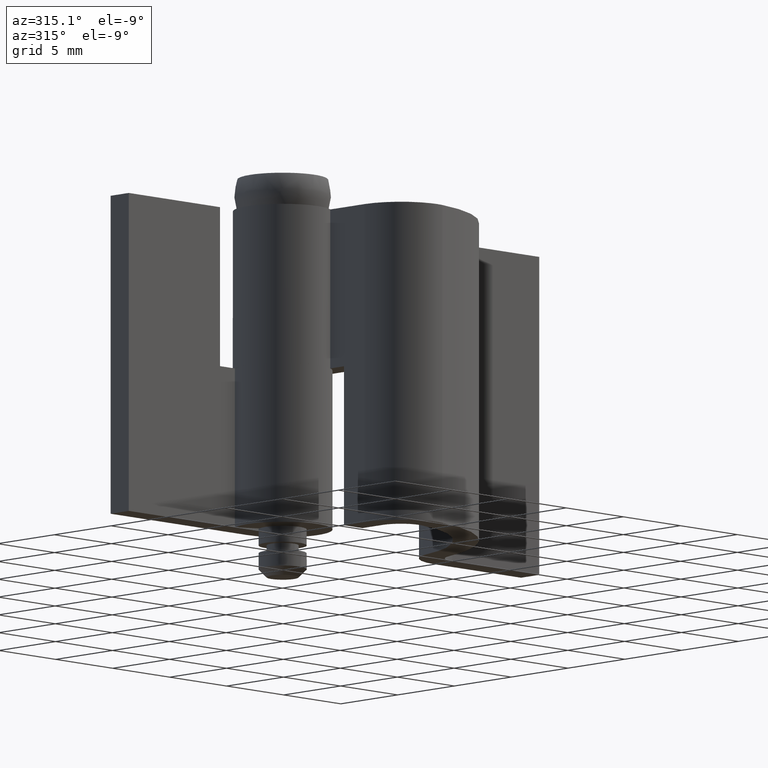
[diagram: clean part render]
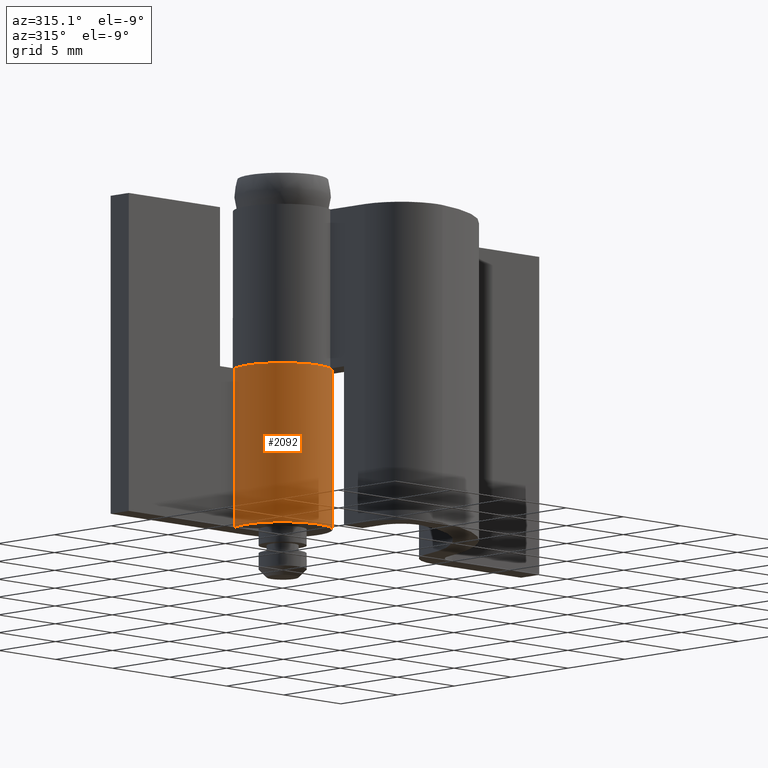
[diagram: same view with one face highlighted and labeled with its STEP entity id]
A machine part, auxiliary view. The second image highlights one B-rep face of the part: STEP entity #2092.
In plain terms, the highlighted face is a freeform B-spline surface patch.
Its self-contained STEP definition (entity closure, byte-faithful):
#1818=CARTESIAN_POINT('',(-2.739981751764050,1.450000000000000,13.0));
#1819=VERTEX_POINT('',#1818);
#1820=CARTESIAN_POINT('',(0.003521362805222,3.099998000000000,13.0));
#1821=VERTEX_POINT('',#1820);
#1822=CARTESIAN_POINT('',(-2.739981751764050,1.450000000000002,13.0));
#1823=CARTESIAN_POINT('',(-3.841702627498679,-0.631858686241644,12.999999999999998));
#1824=CARTESIAN_POINT('',(-2.131234265315453,-2.251186466365081,13.0));
#1825=CARTESIAN_POINT('',(-0.420765903132227,-3.870514246488519,12.999999999999998));
#1826=CARTESIAN_POINT('',(1.597709990920185,-2.656562211752968,13.0));
#1827=CARTESIAN_POINT('',(3.616185884972593,-1.442610177017420,12.999999999999998));
#1828=CARTESIAN_POINT('',(2.987554489866699,0.827356132555580,13.0));
#1829=CARTESIAN_POINT('',(2.358923094760805,3.097322442128583,12.999999999999998));
#1830=CARTESIAN_POINT('',(0.003521362805225,3.099997999999999,13.0));
#1838=(BOUNDED_CURVE()B_SPLINE_CURVE(2,(#1822,#1823,#1824,#1825,#1826,#1827,#1828,#1829,#1830),.UNSPECIFIED.,.F.,.U.)B_SPLINE_CURVE_WITH_KNOTS((3,2,2,2,3),(0.0,0.250000000000000,0.500000000000000,0.750000000000000,1.0),.UNSPECIFIED.)CURVE()GEOMETRIC_REPRESENTATION_ITEM()RATIONAL_B_SPLINE_CURVE((1.0,0.796236027586614,1.0,0.796236027586614,1.0,0.796236027586614,1.0,0.796236027586614,1.0))REPRESENTATION_ITEM(''));
#1839=EDGE_CURVE('',#1819,#1821,#1838,.T.);
#1897=CARTESIAN_POINT('',(0.003521362805222,3.099998000000000,3.0));
#1898=VERTEX_POINT('',#1897);
#1904=CARTESIAN_POINT('',(-2.739981751764050,1.450000000000000,3.0));
#1905=VERTEX_POINT('',#1904);
#1906=CARTESIAN_POINT('',(0.003521362805220,3.099997999999999,3.0));
#1907=CARTESIAN_POINT('',(2.358923094760800,3.097322442128588,3.0));
#1908=CARTESIAN_POINT('',(2.987554489866698,0.827356132555584,3.0));
#1909=CARTESIAN_POINT('',(3.616185884972595,-1.442610177017417,3.0));
#1910=CARTESIAN_POINT('',(1.597709990920186,-2.656562211752968,3.0));
#1911=CARTESIAN_POINT('',(-0.420765903132224,-3.870514246488519,3.0));
#1912=CARTESIAN_POINT('',(-2.131234265315451,-2.251186466365083,3.0));
#1913=CARTESIAN_POINT('',(-3.841702627498679,-0.631858686241647,3.0));
#1914=CARTESIAN_POINT('',(-2.739981751764052,1.450000000000000,3.0));
#1922=(BOUNDED_CURVE()B_SPLINE_CURVE(2,(#1906,#1907,#1908,#1909,#1910,#1911,#1912,#1913,#1914),.UNSPECIFIED.,.F.,.U.)B_SPLINE_CURVE_WITH_KNOTS((3,2,2,2,3),(0.0,0.250000000000000,0.500000000000000,0.750000000000000,1.0),.UNSPECIFIED.)CURVE()GEOMETRIC_REPRESENTATION_ITEM()RATIONAL_B_SPLINE_CURVE((1.0,0.796236027586614,1.0,0.796236027586614,1.0,0.796236027586614,1.0,0.796236027586614,1.0))REPRESENTATION_ITEM(''));
#1923=EDGE_CURVE('',#1898,#1905,#1922,.T.);
#2052=CARTESIAN_POINT('',(-2.739981751764050,1.450000000000000,13.0));
#2053=CARTESIAN_POINT('',(-2.739981751764050,1.450000000000000,3.0));
#2054=QUASI_UNIFORM_CURVE('',1,(#2052,#2053),.UNSPECIFIED.,.F.,.U.);
#2055=EDGE_CURVE('',#1819,#1905,#2054,.T.);
#2060=CARTESIAN_POINT('',(-2.696366914693332,1.529576889648622,13.250000000000000));
#2061=CARTESIAN_POINT('',(-2.696366914693332,1.529576889648622,2.743749999999999));
#2062=CARTESIAN_POINT('',(-4.562928086201012,-1.760832256282387,13.250000000000000));
#2063=CARTESIAN_POINT('',(-4.562928086201012,-1.760832256282387,2.743749999999998));
#2064=CARTESIAN_POINT('',(-0.969870014465331,-2.944376360970351,13.250000000000000));
#2065=CARTESIAN_POINT('',(-0.969870014465331,-2.944376360970351,2.743749999999999));
#2066=CARTESIAN_POINT('',(2.623188057270348,-4.127920465658314,13.250000000000000));
#2067=CARTESIAN_POINT('',(2.623188057270348,-4.127920465658314,2.743749999999998));
#2068=CARTESIAN_POINT('',(3.077558048553899,-0.372339170355610,13.250000000000000));
#2069=CARTESIAN_POINT('',(3.077558048553899,-0.372339170355610,2.743749999999999));
#2070=CARTESIAN_POINT('',(3.531928039837451,3.383242124947096,13.250000000000000));
#2071=CARTESIAN_POINT('',(3.531928039837451,3.383242124947096,2.743749999999998));
#2072=CARTESIAN_POINT('',(-0.239712532219240,3.090718023679454,13.250000000000000));
#2073=CARTESIAN_POINT('',(-0.239712532219240,3.090718023679454,2.743749999999999));
#2081=(BOUNDED_SURFACE()B_SPLINE_SURFACE(1,2,((#2060,#2062,#2064,#2066,#2068,#2070,#2072),(#2061,#2063,#2065,#2067,#2069,#2071,#2073)),.UNSPECIFIED.,.F.,.F.,.U.)B_SPLINE_SURFACE_WITH_KNOTS((2,2),(3,2,2,3),(0.0,10.506250000000000),(0.0,5.870281529289075,11.740563058578150,17.610844587867231),.UNSPECIFIED.)GEOMETRIC_REPRESENTATION_ITEM()RATIONAL_B_SPLINE_SURFACE(((1.0,0.633830967398710,1.0,0.633830967398710,1.0,0.633830967398710,1.0),(1.0,0.633830967398710,1.0,0.633830967398710,1.0,0.633830967398710,1.0)))REPRESENTATION_ITEM('')SURFACE());
#2082=ORIENTED_EDGE('',*,*,#1839,.F.);
#2083=ORIENTED_EDGE('',*,*,#2055,.T.);
#2084=ORIENTED_EDGE('',*,*,#1923,.F.);
#2085=CARTESIAN_POINT('',(0.003521362805222,3.099998000000000,13.0));
#2086=CARTESIAN_POINT('',(0.003521362805222,3.099998000000000,3.0));
#2087=QUASI_UNIFORM_CURVE('',1,(#2085,#2086),.UNSPECIFIED.,.F.,.U.);
#2088=EDGE_CURVE('',#1821,#1898,#2087,.T.);
#2089=ORIENTED_EDGE('',*,*,#2088,.F.);
#2090=EDGE_LOOP('',(#2082,#2083,#2084,#2089));
#2091=FACE_OUTER_BOUND('',#2090,.T.);
#2092=ADVANCED_FACE('',(#2091),#2081,.T.);